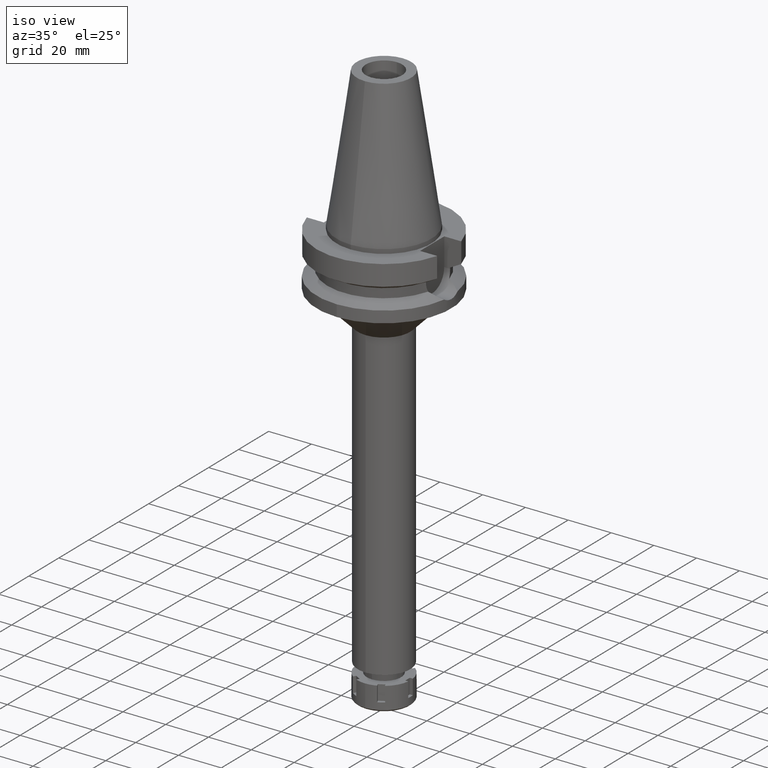
[diagram: clean part render]
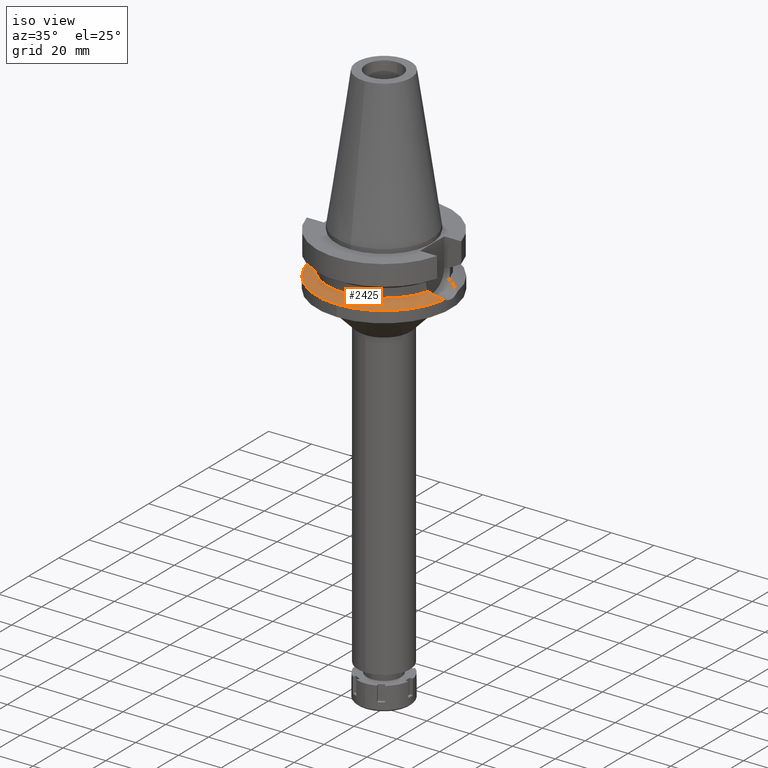
[diagram: same view with one face highlighted and labeled with its STEP entity id]
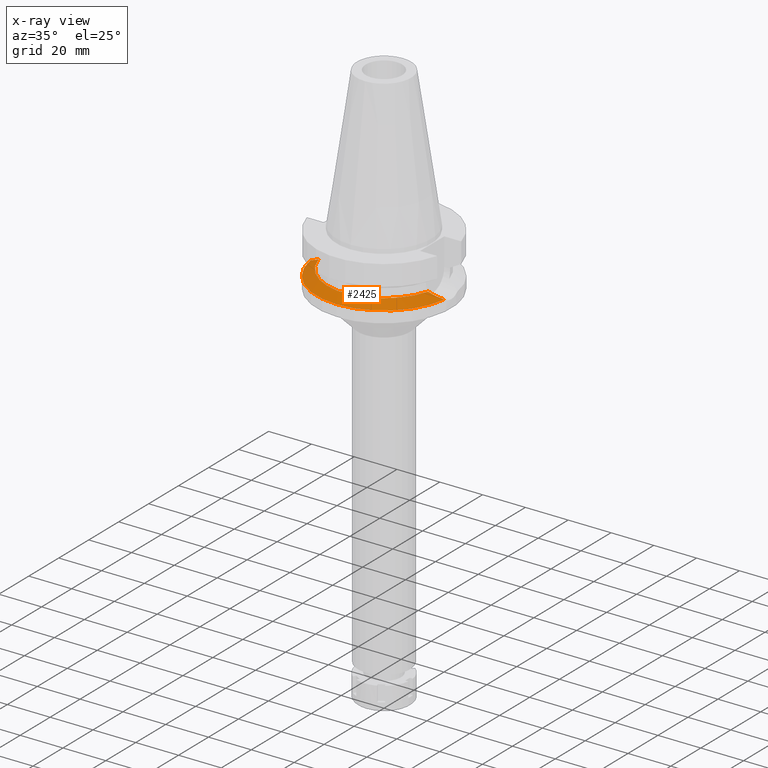
[diagram: x-ray of the same camera — body ghosted, the highlighted face saturated]
A machine part, iso view. The second image highlights one B-rep face of the part: STEP entity #2425.
The next image is the same camera in x-ray: the body ghosted, the highlighted face saturated — about 0% of this face is hidden behind the body in this view.
In plain terms, the highlighted conical surface has half-angle 60 deg.
Its self-contained STEP definition (entity closure, byte-faithful):
#21 = DIRECTION ( 'NONE',  ( 0.0000000000000000000, 0.0000000000000000000, 1.000000000000000000 ) ) ;
#26 = CARTESIAN_POINT ( 'NONE',  ( -25.53175183775000079, -7.097862220092999941, -18.74774300138999905 ) ) ;
#41 = CARTESIAN_POINT ( 'NONE',  ( 0.0000000000000000000, 0.0000000000000000000, -20.19111867435999841 ) ) ;
#129 = EDGE_CURVE ( 'NONE', #1817, #1648, #3116, .T. ) ;
#138 = DIRECTION ( 'NONE',  ( 0.0000000000000000000, -1.000000000000000000, 0.0000000000000000000 ) ) ;
#165 = ORIENTED_EDGE ( 'NONE', *, *, #1681, .F. ) ;
#220 = CARTESIAN_POINT ( 'NONE',  ( -30.44189732756539613, -5.010676536885838139, -21.25916084008336782 ) ) ;
#275 = CARTESIAN_POINT ( 'NONE',  ( -28.68495519229199076, -5.958990974000779595, -20.36231260001205357 ) ) ;
#395 = AXIS2_PLACEMENT_3D ( 'NONE', #41, #642, #1741 ) ;
#430 = CARTESIAN_POINT ( 'NONE',  ( 27.48842575615635297, -6.463767143330363396, -19.75097840318401765 ) ) ;
#453 = CIRCLE ( 'NONE', #978, 26.50000000000000000 ) ;
#493 = CARTESIAN_POINT ( 'NONE',  ( 28.66612935457130718, -5.967721733683807095, -20.35267602111065344 ) ) ;
#521 = DIRECTION ( 'NONE',  ( 0.9898094849552905306, -0.1423979757318985240, 0.0000000000000000000 ) ) ;
#536 = CARTESIAN_POINT ( 'NONE',  ( 0.0000000000000000000, 0.0000000000000000000, -21.63449434733000132 ) ) ;
#602 = VERTEX_POINT ( 'NONE', #1045 ) ;
#642 = DIRECTION ( 'NONE',  ( 0.0000000000000000000, 0.0000000000000000000, -1.000000000000000000 ) ) ;
#644 = DIRECTION ( 'NONE',  ( 0.0000000000000000000, 0.0000000000000000000, -1.000000000000000000 ) ) ;
#684 = ORIENTED_EDGE ( 'NONE', *, *, #1697, .F. ) ;
#702 = CARTESIAN_POINT ( 'NONE',  ( 26.13628056596986227, -6.931687631722294185, -19.05831808040116826 ) ) ;
#727 = VERTEX_POINT ( 'NONE', #26 ) ;
#758 = AXIS2_PLACEMENT_3D ( 'NONE', #536, #1397, #521 ) ;
#768 = CARTESIAN_POINT ( 'NONE',  ( 29.65835184611514208, -5.507699463665972850, -20.85947629994879193 ) ) ;
#807 = CARTESIAN_POINT ( 'NONE',  ( -27.75145082926282569, -6.388160598501903209, -19.88545620956058713 ) ) ;
#819 = CARTESIAN_POINT ( 'NONE',  ( 28.65352094838160468, -5.973544000684277044, -20.34623615679715769 ) ) ;
#850 = EDGE_CURVE ( 'NONE', #602, #1836, #867, .T. ) ;
#867 = CIRCLE ( 'NONE', #1336, 31.50000000000000000 ) ;
#978 = AXIS2_PLACEMENT_3D ( 'NONE', #2871, #21, #1705 ) ;
#1015 = EDGE_LOOP ( 'NONE', ( #3435, #684, #3570, #3133, #165 ) ) ;
#1045 = CARTESIAN_POINT ( 'NONE',  ( 0.0000000000000000000, -31.50000000000000000, -21.63449434733000132 ) ) ;
#1066 = CARTESIAN_POINT ( 'NONE',  ( -26.71855894639251972, -6.771629282687311679, -19.35746210047043547 ) ) ;
#1079 = CARTESIAN_POINT ( 'NONE',  ( -31.17899877608999759, -4.485536235554000051, -21.63449434733000132 ) ) ;
#1336 = AXIS2_PLACEMENT_3D ( 'NONE', #2968, #644, #138 ) ;
#1354 = CARTESIAN_POINT ( 'NONE',  ( 28.58342948382520632, -6.005735860001232496, -20.31043724321839150 ) ) ;
#1359 = CARTESIAN_POINT ( 'NONE',  ( -28.64603427776685152, -5.976974054075391507, -20.34243079819539091 ) ) ;
#1397 = DIRECTION ( 'NONE',  ( 0.0000000000000000000, 0.0000000000000000000, -1.000000000000000000 ) ) ;
#1434 = CARTESIAN_POINT ( 'NONE',  ( -31.17899877608999759, -4.485536235554000051, -21.63449434733000132 ) ) ;
#1465 = CIRCLE ( 'NONE', #758, 31.50000000000001421 ) ;
#1633 = CARTESIAN_POINT ( 'NONE',  ( -25.53175183775000079, -7.097862220092999941, -18.74774300138999905 ) ) ;
#1647 = CARTESIAN_POINT ( 'NONE',  ( 30.49088666615192267, -5.007585318183770617, -21.28418062797047483 ) ) ;
#1648 = VERTEX_POINT ( 'NONE', #2205 ) ;
#1681 = EDGE_CURVE ( 'NONE', #1836, #727, #3266, .T. ) ;
#1687 = CARTESIAN_POINT ( 'NONE',  ( 28.48437653017413496, -6.050671872219934855, -20.25984883366002975 ) ) ;
#1697 = EDGE_CURVE ( 'NONE', #1648, #602, #1465, .T. ) ;
#1705 = DIRECTION ( 'NONE',  ( 0.0000000000000000000, -1.000000000000000000, 0.0000000000000000000 ) ) ;
#1741 = DIRECTION ( 'NONE',  ( 0.0000000000000000000, -1.000000000000000000, 0.0000000000000000000 ) ) ;
#1817 = VERTEX_POINT ( 'NONE', #3138 ) ;
#1825 = CARTESIAN_POINT ( 'NONE',  ( 26.70101513659894721, -6.750481459643345339, -19.34797877520549036 ) ) ;
#1836 = VERTEX_POINT ( 'NONE', #1434 ) ;
#1947 = CARTESIAN_POINT ( 'NONE',  ( -28.66161362231857979, -5.969784425821733187, -20.35038912168677427 ) ) ;
#2205 = CARTESIAN_POINT ( 'NONE',  ( 31.17899877608999759, -4.485536235554000051, -21.63449434733000132 ) ) ;
#2224 = CARTESIAN_POINT ( 'NONE',  ( -29.05947635591727263, -5.780534884065525958, -20.55362453728281480 ) ) ;
#2237 = CARTESIAN_POINT ( 'NONE',  ( 28.62553099633748133, -5.986427292477716655, -20.33194025049646925 ) ) ;
#2254 = CARTESIAN_POINT ( 'NONE',  ( 28.28300625838208759, -6.140052717376931923, -20.15700775328140537 ) ) ;
#2416 = EDGE_CURVE ( 'NONE', #727, #1817, #453, .T. ) ;
#2425 = ADVANCED_FACE ( 'NONE', ( #3088 ), #3558, .T. ) ;
#2483 = CARTESIAN_POINT ( 'NONE',  ( 31.17899877608999759, -4.485536235554000051, -21.63449434733000132 ) ) ;
#2504 = CARTESIAN_POINT ( 'NONE',  ( -29.23632804820009312, -5.691095350505126937, -20.64394857442596987 ) ) ;
#2673 = CARTESIAN_POINT ( 'NONE',  ( 27.74094742327780239, -6.365703561415264389, -19.88007842892789157 ) ) ;
#2733 = CARTESIAN_POINT ( 'NONE',  ( -29.80475450513312907, -5.387006776770929761, -20.93415662001412514 ) ) ;
#2750 = CARTESIAN_POINT ( 'NONE',  ( -28.63729449149451156, -5.980998362853134687, -20.33796630006418127 ) ) ;
#2871 = CARTESIAN_POINT ( 'NONE',  ( 0.0000000000000000000, 0.0000000000000000000, -18.74774300138999905 ) ) ;
#2968 = CARTESIAN_POINT ( 'NONE',  ( 0.0000000000000000000, 0.0000000000000000000, -21.63449434733000132 ) ) ;
#3010 = CARTESIAN_POINT ( 'NONE',  ( -28.73922672758406094, -5.933743473224931897, -20.39003595706338245 ) ) ;
#3059 = CARTESIAN_POINT ( 'NONE',  ( -29.58300503809583404, -5.510230364490065647, -20.82097333985150556 ) ) ;
#3088 = FACE_OUTER_BOUND ( 'NONE', #1015, .T. ) ;
#3116 = B_SPLINE_CURVE_WITH_KNOTS ( 'NONE', 3,
 ( #3223, #702, #1825, #430, #2673, #3516, #2254, #1687, #1354, #2237, #819, #493, #768, #1647, #2483 ),
 .UNSPECIFIED., .F., .F.,
 ( 4, 2, 2, 1, 1, 1, 2, 2, 4 ),
 ( 0.0000000000000000000, 0.2500000000000143219, 0.3750000000000215383, 0.4375000000000247580, 0.4687500000000260347, 0.4843750000000272005, 0.4921875000000268674, 0.5000000000000265343, 1.000000000000000000 ),
 .UNSPECIFIED. ) ;
#3133 = ORIENTED_EDGE ( 'NONE', *, *, #2416, .F. ) ;
#3138 = CARTESIAN_POINT ( 'NONE',  ( 25.53175183775000079, -7.097862220092999941, -18.74774300138999905 ) ) ;
#3223 = CARTESIAN_POINT ( 'NONE',  ( 25.53175183775000079, -7.097862220092999941, -18.74774300138999905 ) ) ;
#3266 = B_SPLINE_CURVE_WITH_KNOTS ( 'NONE', 3,
 ( #1079, #3641, #220, #2733, #3059, #2504, #2224, #3583, #3010, #275, #1947, #1359, #2750, #807, #1066, #1633 ),
 .UNSPECIFIED., .F., .F.,
 ( 4, 2, 2, 1, 1, 1, 1, 2, 2, 4 ),
 ( 0.0000000000000000000, 0.2499999999999997780, 0.3750000000000000000, 0.4375000000000010547, 0.4687500000000018874, 0.4843750000000017764, 0.4921875000000019984, 0.4960937500000021649, 0.5000000000000023315, 1.000000000000000000 ),
 .UNSPECIFIED. ) ;
#3435 = ORIENTED_EDGE ( 'NONE', *, *, #850, .F. ) ;
#3516 = CARTESIAN_POINT ( 'NONE',  ( 28.10480711486340866, -6.215747091627402021, -20.06598738072370480 ) ) ;
#3558 = CONICAL_SURFACE ( 'NONE', #395, 29.00000000000000000, 1.047197551196400456 ) ;
#3570 = ORIENTED_EDGE ( 'NONE', *, *, #129, .F. ) ;
#3583 = CARTESIAN_POINT ( 'NONE',  ( -28.84700128625116378, -5.882999638923942065, -20.44508995982076982 ) ) ;
#3641 = CARTESIAN_POINT ( 'NONE',  ( -30.82918510428076075, -4.750928900242610275, -21.45640631968974787 ) ) ;